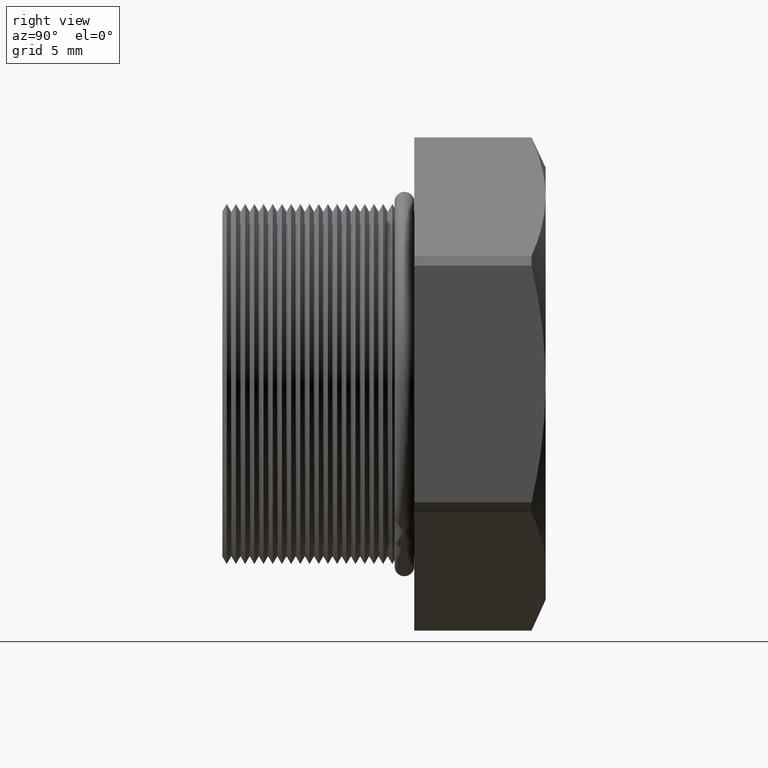
[diagram: clean part render]
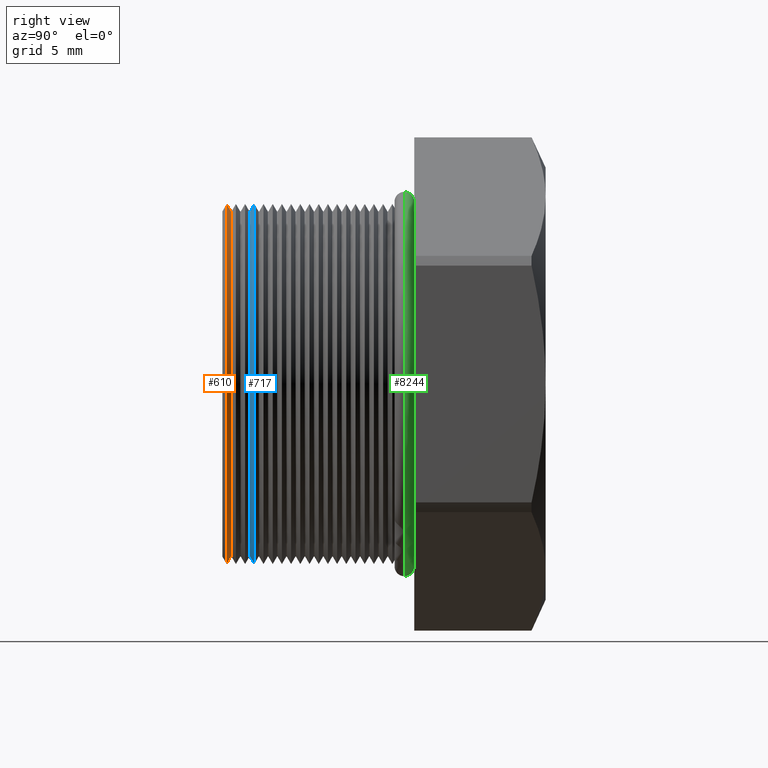
[diagram: same view with three faces highlighted in distinct colors, each labeled with its STEP entity id]
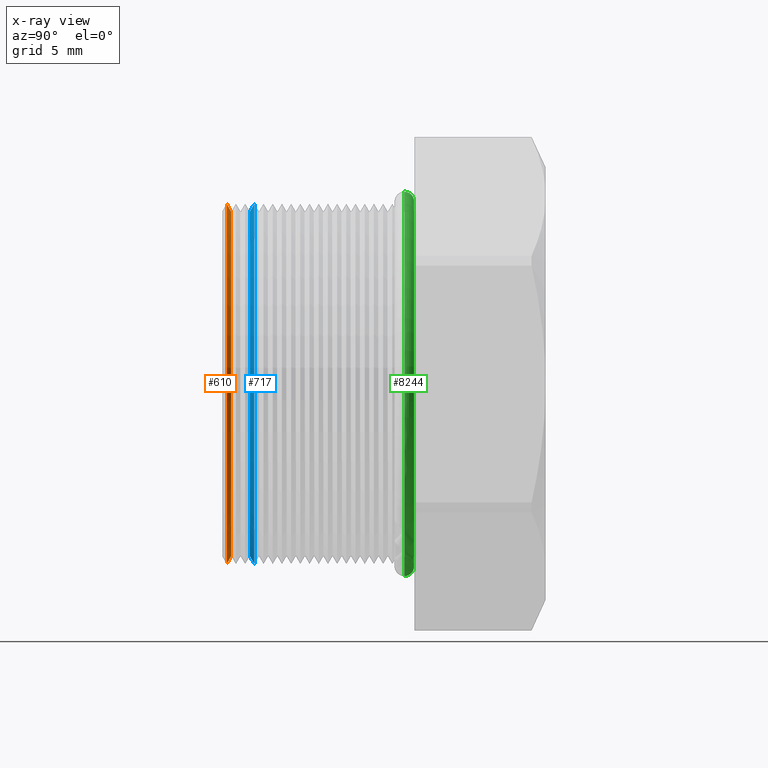
[diagram: x-ray of the same camera — body ghosted, the three highlighted faces saturated]
A machine part, right view with three faces highlighted in distinct colors.
The next image is the same camera in x-ray (body ghosted, the three faces saturated) — at least one of them is partly hidden behind the body in this view.
Their STEP definitions:

[orange] entity #610 — the highlighted conical surface has half-angle 60 deg.
#610 = ADVANCED_FACE ( 'NONE', ( #2964 ), #2963, .T. ) ;
#611 = EDGE_LOOP ( 'NONE', ( #612, #616, #618, #671 ) ) ;
#612 = ORIENTED_EDGE ( 'NONE', *, *, #613, .T. ) ;
#613 = EDGE_CURVE ( 'NONE', #614, #615, #2958, .T. ) ;
#614 = VERTEX_POINT ( 'NONE', #2953 ) ;
#615 = VERTEX_POINT ( 'NONE', #2952 ) ;
#616 = ORIENTED_EDGE ( 'NONE', *, *, #617, .T. ) ;
#617 = EDGE_CURVE ( 'NONE', #615, #624, #2951, .T. ) ;
#618 = ORIENTED_EDGE ( 'NONE', *, *, #623, .T. ) ;
#621 = VERTEX_POINT ( 'NONE', #2943 ) ;
#623 = EDGE_CURVE ( 'NONE', #624, #621, #2942, .T. ) ;
#624 = VERTEX_POINT ( 'NONE', #2937 ) ;
#671 = ORIENTED_EDGE ( 'NONE', *, *, #672, .F. ) ;
#672 = EDGE_CURVE ( 'NONE', #614, #621, #3035, .T. ) ;
#2937 = CARTESIAN_POINT ( 'NONE',  ( 4.026318816969966200E-017, -0.1748451094170520000, 0.3287738815610546400 ) ) ;
#2938 = DIRECTION ( 'NONE',  ( 0.0000000000000000000, 0.0000000000000000000, 1.000000000000000000 ) ) ;
#2939 = DIRECTION ( 'NONE',  ( -0.0000000000000000000, 1.000000000000000000, -0.0000000000000000000 ) ) ;
#2940 = CARTESIAN_POINT ( 'NONE',  ( 0.0000000000000000000, -0.1748451094170520000, 0.0000000000000000000 ) ) ;
#2941 = AXIS2_PLACEMENT_3D ( 'NONE', #2940, #2939, #2938 ) ;
#2942 = CIRCLE ( 'NONE', #2941, 0.3287738815610546400 ) ;
#2943 = CARTESIAN_POINT ( 'NONE',  ( 0.0000000000000000000, -0.1748451094170520000, -0.3287738815610546400 ) ) ;
#2948 = DIRECTION ( 'NONE',  ( 1.060575238724906300E-016, -0.5000000000000008900, 0.8660254037844380400 ) ) ;
#2949 = VECTOR ( 'NONE', #2948, 39.37007874015748100 ) ;
#2950 = CARTESIAN_POINT ( 'NONE',  ( 3.857637417314162700E-017, -0.1668927551899910500, 0.3150000000000000000 ) ) ;
#2951 = LINE ( 'NONE', #2950, #2949 ) ;
#2952 = CARTESIAN_POINT ( 'NONE',  ( 3.857637417314162700E-017, -0.1668927551899910500, 0.3150000000000000000 ) ) ;
#2953 = CARTESIAN_POINT ( 'NONE',  ( 0.0000000000000000000, -0.1668927551899910500, -0.3150000000000000000 ) ) ;
#2954 = DIRECTION ( 'NONE',  ( 0.0000000000000000000, 0.0000000000000000000, -1.000000000000000000 ) ) ;
#2955 = DIRECTION ( 'NONE',  ( 0.0000000000000000000, -1.000000000000000000, 0.0000000000000000000 ) ) ;
#2956 = CARTESIAN_POINT ( 'NONE',  ( 0.0000000000000000000, -0.1668927551899910500, 0.0000000000000000000 ) ) ;
#2957 = AXIS2_PLACEMENT_3D ( 'NONE', #2956, #2955, #2954 ) ;
#2958 = CIRCLE ( 'NONE', #2957, 0.3150000000000000000 ) ;
#2959 = DIRECTION ( 'NONE',  ( 0.0000000000000000000, 0.0000000000000000000, -1.000000000000000000 ) ) ;
#2960 = DIRECTION ( 'NONE',  ( 0.0000000000000000000, -1.000000000000000000, 0.0000000000000000000 ) ) ;
#2961 = CARTESIAN_POINT ( 'NONE',  ( 0.0000000000000000000, -0.1668927551899910500, 0.0000000000000000000 ) ) ;
#2962 = AXIS2_PLACEMENT_3D ( 'NONE', #2961, #2960, #2959 ) ;
#2963 = CONICAL_SURFACE ( 'NONE', #2962, 0.3150000000000000000, 1.047197551196596700 ) ;
#2964 = FACE_OUTER_BOUND ( 'NONE', #611, .T. ) ;
#3032 = DIRECTION ( 'NONE',  ( 0.0000000000000000000, -0.5000000000000008900, -0.8660254037844380400 ) ) ;
#3033 = VECTOR ( 'NONE', #3032, 39.37007874015748100 ) ;
#3034 = CARTESIAN_POINT ( 'NONE',  ( 0.0000000000000000000, -0.1668927551899910500, -0.3150000000000000000 ) ) ;
#3035 = LINE ( 'NONE', #3034, #3033 ) ;

[blue] entity #717 — the highlighted conical surface has half-angle 60 deg.
#637 = EDGE_LOOP ( 'NONE', ( #638, #642, #696, #699 ) ) ;
#638 = ORIENTED_EDGE ( 'NONE', *, *, #639, .T. ) ;
#639 = EDGE_CURVE ( 'NONE', #640, #641, #2975, .T. ) ;
#640 = VERTEX_POINT ( 'NONE', #2970 ) ;
#641 = VERTEX_POINT ( 'NONE', #2969 ) ;
#642 = ORIENTED_EDGE ( 'NONE', *, *, #694, .T. ) ;
#694 = EDGE_CURVE ( 'NONE', #641, #695, #3109, .T. ) ;
#695 = VERTEX_POINT ( 'NONE', #3104 ) ;
#696 = ORIENTED_EDGE ( 'NONE', *, *, #697, .F. ) ;
#697 = EDGE_CURVE ( 'NONE', #698, #695, #3103, .T. ) ;
#698 = VERTEX_POINT ( 'NONE', #3098 ) ;
#699 = ORIENTED_EDGE ( 'NONE', *, *, #700, .F. ) ;
#700 = EDGE_CURVE ( 'NONE', #640, #698, #3097, .T. ) ;
#717 = ADVANCED_FACE ( 'NONE', ( #3189 ), #3188, .T. ) ;
#2969 = CARTESIAN_POINT ( 'NONE',  ( 0.0000000000000000000, -0.1323974636441129200, -0.3150000000000000000 ) ) ;
#2970 = CARTESIAN_POINT ( 'NONE',  ( 3.857637417314162700E-017, -0.1323974636441129200, 0.3150000000000000000 ) ) ;
#2971 = DIRECTION ( 'NONE',  ( 0.0000000000000000000, 0.0000000000000000000, 1.000000000000000000 ) ) ;
#2972 = DIRECTION ( 'NONE',  ( -0.0000000000000000000, 1.000000000000000000, -0.0000000000000000000 ) ) ;
#2973 = CARTESIAN_POINT ( 'NONE',  ( 0.0000000000000000000, -0.1323974636441129200, 0.0000000000000000000 ) ) ;
#2974 = AXIS2_PLACEMENT_3D ( 'NONE', #2973, #2972, #2971 ) ;
#2975 = CIRCLE ( 'NONE', #2974, 0.3150000000000000000 ) ;
#3096 = CARTESIAN_POINT ( 'NONE',  ( 0.0000000000000000000, -0.1244451094170520000, 0.3287738815610546400 ) ) ;
#3097 = LINE ( 'NONE', #3096, #3159 ) ;
#3098 = CARTESIAN_POINT ( 'NONE',  ( 4.026318816969966200E-017, -0.1244451094170520000, 0.3287738815610546400 ) ) ;
#3099 = DIRECTION ( 'NONE',  ( 0.0000000000000000000, 0.0000000000000000000, 1.000000000000000000 ) ) ;
#3100 = DIRECTION ( 'NONE',  ( -0.0000000000000000000, 1.000000000000000000, -0.0000000000000000000 ) ) ;
#3101 = CARTESIAN_POINT ( 'NONE',  ( 0.0000000000000000000, -0.1244451094170520000, 0.0000000000000000000 ) ) ;
#3102 = AXIS2_PLACEMENT_3D ( 'NONE', #3101, #3100, #3099 ) ;
#3103 = CIRCLE ( 'NONE', #3102, 0.3287738815610546400 ) ;
#3104 = CARTESIAN_POINT ( 'NONE',  ( 0.0000000000000000000, -0.1244451094170520000, -0.3287738815610546400 ) ) ;
#3105 = DIRECTION ( 'NONE',  ( 1.060575238724907500E-016, 0.4999999999999991100, -0.8660254037844391500 ) ) ;
#3107 = VECTOR ( 'NONE', #3105, 39.37007874015748100 ) ;
#3108 = CARTESIAN_POINT ( 'NONE',  ( 4.026318816969965600E-017, -0.1244451094170520000, -0.3287738815610546400 ) ) ;
#3109 = LINE ( 'NONE', #3108, #3107 ) ;
#3158 = DIRECTION ( 'NONE',  ( 0.0000000000000000000, 0.4999999999999991100, 0.8660254037844391500 ) ) ;
#3159 = VECTOR ( 'NONE', #3158, 39.37007874015748100 ) ;
#3183 = DIRECTION ( 'NONE',  ( 0.0000000000000000000, 0.0000000000000000000, 1.000000000000000000 ) ) ;
#3184 = DIRECTION ( 'NONE',  ( -0.0000000000000000000, 1.000000000000000000, -0.0000000000000000000 ) ) ;
#3185 = AXIS2_PLACEMENT_3D ( 'NONE', #3187, #3184, #3183 ) ;
#3187 = CARTESIAN_POINT ( 'NONE',  ( 0.0000000000000000000, -0.1244451094170520000, 0.0000000000000000000 ) ) ;
#3188 = CONICAL_SURFACE ( 'NONE', #3185, 0.3287738815610546400, 1.047197551196598700 ) ;
#3189 = FACE_OUTER_BOUND ( 'NONE', #637, .T. ) ;

[green] entity #8244 — the highlighted toroidal blend (fillet) surface has major radius 8.4582 mm and minor (blend) radius 0.4572 mm.
#5933 = CARTESIAN_POINT ( 'NONE',  ( 0.0000000000000000000, 0.1495548905829479400, 0.3150000000000000000 ) ) ;
#5965 = DIRECTION ( 'NONE',  ( 0.0000000000000000000, 0.0000000000000000000, 1.000000000000000000 ) ) ;
#5966 = DIRECTION ( 'NONE',  ( -1.000000000000000000, 0.0000000000000000000, 0.0000000000000000000 ) ) ;
#5967 = CARTESIAN_POINT ( 'NONE',  ( 0.0000000000000000000, 0.1495548905829479400, 0.3329999999999999600 ) ) ;
#5968 = AXIS2_PLACEMENT_3D ( 'NONE', #5967, #5966, #5965 ) ;
#5969 = CIRCLE ( 'NONE', #5968, 0.01799999999999998500 ) ;
#5970 = CARTESIAN_POINT ( 'NONE',  ( 0.0000000000000000000, 0.1495548905829479400, 0.3509999999999999800 ) ) ;
#5982 = CARTESIAN_POINT ( 'NONE',  ( 3.857637417314162100E-017, 0.1495548905829479400, -0.3150000000000000000 ) ) ;
#5983 = CARTESIAN_POINT ( 'NONE',  ( 4.298510265007208900E-017, 0.1495548905829479400, -0.3509999999999999800 ) ) ;
#5984 = DIRECTION ( 'NONE',  ( 1.224646799147354900E-016, 0.0000000000000000000, -1.000000000000000000 ) ) ;
#5985 = DIRECTION ( 'NONE',  ( 1.000000000000000000, 0.0000000000000000000, 1.224646799147353200E-016 ) ) ;
#5986 = CARTESIAN_POINT ( 'NONE',  ( 4.078073841160685800E-017, 0.1495548905829479400, -0.3329999999999999600 ) ) ;
#5987 = AXIS2_PLACEMENT_3D ( 'NONE', #5986, #5985, #5984 ) ;
#5988 = CIRCLE ( 'NONE', #5987, 0.01799999999999998500 ) ;
#5998 = DIRECTION ( 'NONE',  ( 0.0000000000000000000, 0.0000000000000000000, 1.000000000000000000 ) ) ;
#5999 = DIRECTION ( 'NONE',  ( -0.0000000000000000000, 1.000000000000000000, -0.0000000000000000000 ) ) ;
#6000 = CARTESIAN_POINT ( 'NONE',  ( 0.0000000000000000000, 0.1495548905829479400, 0.0000000000000000000 ) ) ;
#6001 = AXIS2_PLACEMENT_3D ( 'NONE', #6000, #5999, #5998 ) ;
#6003 = TOROIDAL_SURFACE ( 'NONE', #6001, 0.3329999999999999600, 0.01799999999999998500 ) ;
#6004 = FACE_OUTER_BOUND ( 'NONE', #8204, .T. ) ;
#6005 = DIRECTION ( 'NONE',  ( 0.0000000000000000000, 0.0000000000000000000, 1.000000000000000000 ) ) ;
#6006 = DIRECTION ( 'NONE',  ( -0.0000000000000000000, 1.000000000000000000, -0.0000000000000000000 ) ) ;
#6007 = CARTESIAN_POINT ( 'NONE',  ( 0.0000000000000000000, 0.1495548905829479400, 0.0000000000000000000 ) ) ;
#6008 = AXIS2_PLACEMENT_3D ( 'NONE', #6007, #6006, #6005 ) ;
#6009 = CIRCLE ( 'NONE', #6008, 0.3150000000000000000 ) ;
#6010 = DIRECTION ( 'NONE',  ( 0.0000000000000000000, 0.0000000000000000000, 1.000000000000000000 ) ) ;
#6011 = DIRECTION ( 'NONE',  ( -0.0000000000000000000, 1.000000000000000000, -0.0000000000000000000 ) ) ;
#6012 = CARTESIAN_POINT ( 'NONE',  ( 0.0000000000000000000, 0.1495548905829479400, 0.0000000000000000000 ) ) ;
#6013 = AXIS2_PLACEMENT_3D ( 'NONE', #6012, #6011, #6010 ) ;
#6014 = CIRCLE ( 'NONE', #6013, 0.3509999999999999800 ) ;
#8204 = EDGE_LOOP ( 'NONE', ( #8238, #8239, #8237, #8241 ) ) ;
#8212 = VERTEX_POINT ( 'NONE', #5933 ) ;
#8214 = EDGE_CURVE ( 'NONE', #8215, #8216, #5988, .T. ) ;
#8215 = VERTEX_POINT ( 'NONE', #5983 ) ;
#8216 = VERTEX_POINT ( 'NONE', #5982 ) ;
#8220 = VERTEX_POINT ( 'NONE', #5970 ) ;
#8223 = EDGE_CURVE ( 'NONE', #8220, #8212, #5969, .T. ) ;
#8236 = EDGE_CURVE ( 'NONE', #8220, #8215, #6014, .T. ) ;
#8237 = ORIENTED_EDGE ( 'NONE', *, *, #8214, .T. ) ;
#8238 = ORIENTED_EDGE ( 'NONE', *, *, #8223, .F. ) ;
#8239 = ORIENTED_EDGE ( 'NONE', *, *, #8236, .T. ) ;
#8240 = EDGE_CURVE ( 'NONE', #8212, #8216, #6009, .T. ) ;
#8241 = ORIENTED_EDGE ( 'NONE', *, *, #8240, .F. ) ;
#8244 = ADVANCED_FACE ( 'NONE', ( #6004 ), #6003, .T. ) ;